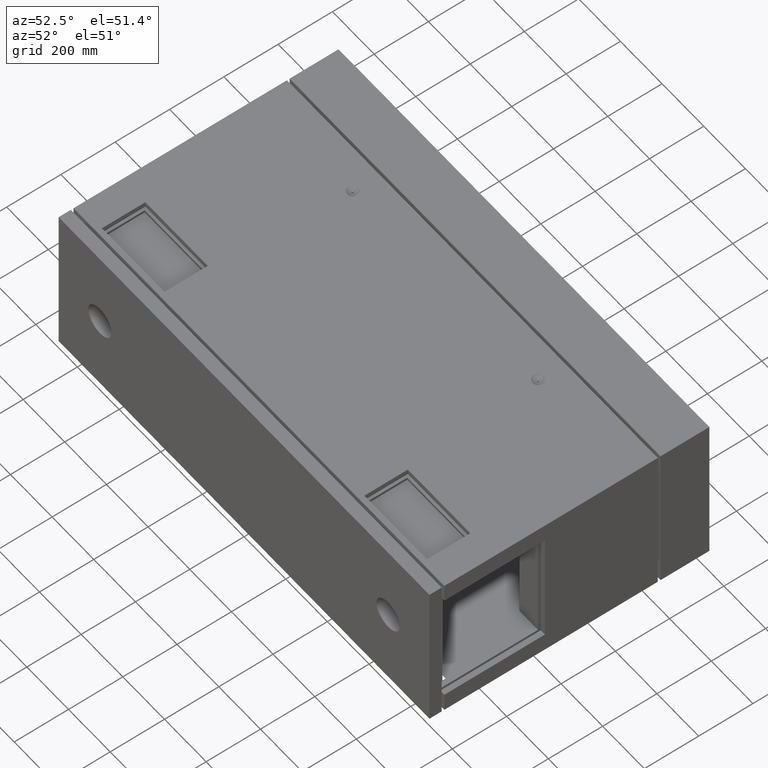
[diagram: clean part render]
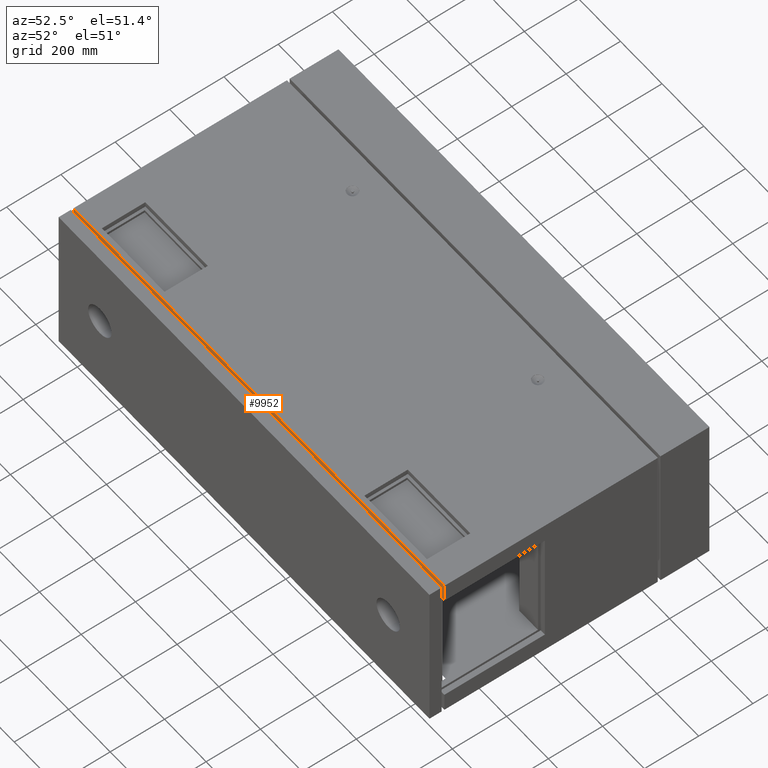
[diagram: same view with one face highlighted and labeled with its STEP entity id]
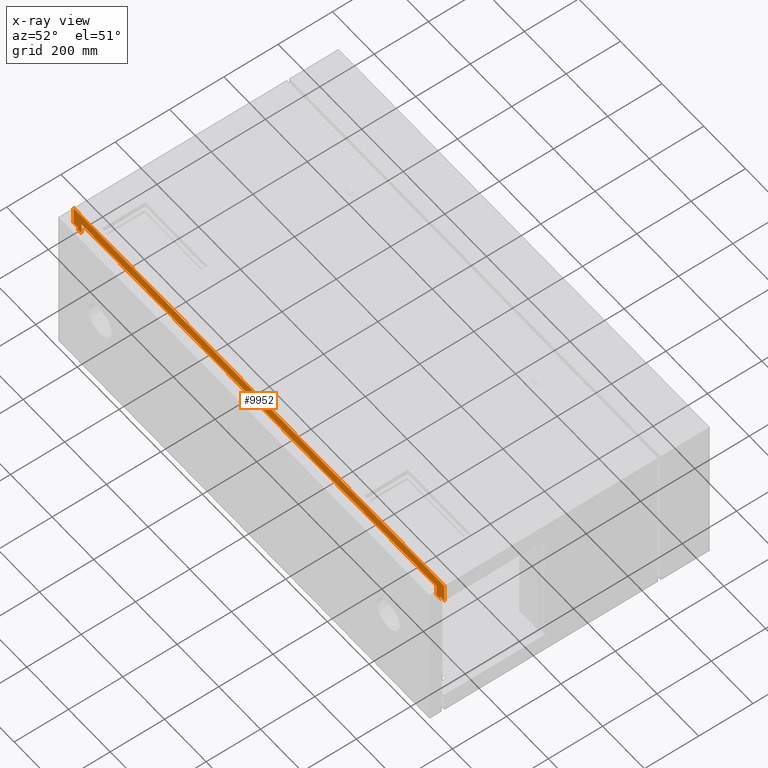
[diagram: x-ray of the same camera — body ghosted, the highlighted face saturated]
A machine part, auxiliary view. The second image highlights one B-rep face of the part: STEP entity #9952.
The next image is the same camera in x-ray: the body ghosted, the highlighted face saturated — about 0% of this face is hidden behind the body in this view.
In plain terms, the highlighted planar face has unit normal (0, -1, -0).
Its self-contained STEP definition (entity closure, byte-faithful):
#143 = CARTESIAN_POINT ( 'NONE',  ( -869.9999999999998863, 54.99999999999999289, 220.0000000000000284 ) ) ;
#291 = CARTESIAN_POINT ( 'NONE',  ( -890.0000000000001137, 55.00000000000004974, 290.0000000000000568 ) ) ;
#373 = CARTESIAN_POINT ( 'NONE',  ( -869.9999999999998863, 54.99999999999999289, 220.0000000000000284 ) ) ;
#408 = DIRECTION ( 'NONE',  ( -1.000000000000000000, -0.000000000000000000, 0.000000000000000000 ) ) ;
#654 = CARTESIAN_POINT ( 'NONE',  ( 870.0000000000000000, 55.00000000000004974, 210.0000000000000000 ) ) ;
#759 = DIRECTION ( 'NONE',  ( 2.392722035830078910E-17, 0.000000000000000000, -1.000000000000000000 ) ) ;
#764 = VECTOR ( 'NONE', #6861, 1000.000000000000000 ) ;
#821 = CARTESIAN_POINT ( 'NONE',  ( 890.0000000000000000, 54.99999999999999289, 220.0000000000000284 ) ) ;
#973 = VECTOR ( 'NONE', #5156, 1000.000000000000000 ) ;
#1043 = VECTOR ( 'NONE', #3524, 1000.000000000000000 ) ;
#1064 = VERTEX_POINT ( 'NONE', #6048 ) ;
#1196 = VECTOR ( 'NONE', #759, 1000.000000000000000 ) ;
#1309 = VECTOR ( 'NONE', #11837, 1000.000000000000000 ) ;
#1470 = CARTESIAN_POINT ( 'NONE',  ( -851.5000000000001137, 55.00000000000004974, 210.0000000000000000 ) ) ;
#1782 = EDGE_CURVE ( 'NONE', #8016, #2942, #8827, .T. ) ;
#1922 = AXIS2_PLACEMENT_3D ( 'NONE', #291, #10814, #5023 ) ;
#2573 = VECTOR ( 'NONE', #4315, 1000.000000000000000 ) ;
#2772 = VECTOR ( 'NONE', #7904, 1000.000000000000000 ) ;
#2828 = LINE ( 'NONE', #7353, #1043 ) ;
#2851 = CARTESIAN_POINT ( 'NONE',  ( -890.0000000000001137, 55.00000000000004974, 290.0000000000000568 ) ) ;
#2942 = VERTEX_POINT ( 'NONE', #821 ) ;
#2981 = DIRECTION ( 'NONE',  ( -0.000000000000000000, -0.000000000000000000, 1.000000000000000000 ) ) ;
#2987 = CARTESIAN_POINT ( 'NONE',  ( -851.5000000000001137, 55.00000000000004974, 251.5000000000000000 ) ) ;
#3018 = VERTEX_POINT ( 'NONE', #7828 ) ;
#3143 = DIRECTION ( 'NONE',  ( 1.000000000000000000, 0.000000000000000000, 0.000000000000000000 ) ) ;
#3295 = LINE ( 'NONE', #11344, #1196 ) ;
#3316 = EDGE_CURVE ( 'NONE', #8016, #6342, #9019, .T. ) ;
#3347 = CARTESIAN_POINT ( 'NONE',  ( 851.5000000000000000, 55.00000000000004974, 251.5000000000000000 ) ) ;
#3524 = DIRECTION ( 'NONE',  ( -2.759003540320965655E-17, 0.000000000000000000, 1.000000000000000000 ) ) ;
#3551 = CARTESIAN_POINT ( 'NONE',  ( 870.0000000000001137, 55.00000000000004974, 220.0000000000000284 ) ) ;
#3608 = PLANE ( 'NONE',  #1922 ) ;
#3705 = EDGE_CURVE ( 'NONE', #4556, #4679, #5670, .T. ) ;
#3733 = VECTOR ( 'NONE', #3811, 1000.000000000000000 ) ;
#3811 = DIRECTION ( 'NONE',  ( 1.000000000000000000, 0.000000000000000000, 0.000000000000000000 ) ) ;
#4023 = LINE ( 'NONE', #5209, #8896 ) ;
#4032 = CARTESIAN_POINT ( 'NONE',  ( -869.9999999999998863, 54.99999999999999289, 220.0000000000000284 ) ) ;
#4033 = VECTOR ( 'NONE', #408, 1000.000000000000000 ) ;
#4315 = DIRECTION ( 'NONE',  ( -1.000000000000000000, 0.000000000000000000, -0.000000000000000000 ) ) ;
#4556 = VERTEX_POINT ( 'NONE', #4032 ) ;
#4679 = VERTEX_POINT ( 'NONE', #11923 ) ;
#4750 = VERTEX_POINT ( 'NONE', #6108 ) ;
#5023 = DIRECTION ( 'NONE',  ( -1.000000000000000000, 0.000000000000000000, -0.000000000000000000 ) ) ;
#5156 = DIRECTION ( 'NONE',  ( 0.000000000000000000, 1.224646799147353454E-16, -1.000000000000000000 ) ) ;
#5209 = CARTESIAN_POINT ( 'NONE',  ( 226.8273325624265908, 55.00000000000004974, 210.0000000000000000 ) ) ;
#5670 = LINE ( 'NONE', #143, #2772 ) ;
#5765 = EDGE_CURVE ( 'NONE', #4679, #10867, #8041, .T. ) ;
#5767 = LINE ( 'NONE', #3347, #2573 ) ;
#5847 = ORIENTED_EDGE ( 'NONE', *, *, #10984, .T. ) ;
#6034 = CARTESIAN_POINT ( 'NONE',  ( 870.0000000000000000, 54.99999999999999289, 220.0000000000000284 ) ) ;
#6048 = CARTESIAN_POINT ( 'NONE',  ( 851.5000000000001137, 55.00000000000004974, 251.5000000000000000 ) ) ;
#6108 = CARTESIAN_POINT ( 'NONE',  ( -869.9999999999998863, 54.99999999999999289, 210.0000000000000000 ) ) ;
#6342 = VERTEX_POINT ( 'NONE', #654 ) ;
#6404 = ORIENTED_EDGE ( 'NONE', *, *, #6630, .F. ) ;
#6630 = EDGE_CURVE ( 'NONE', #8013, #4750, #8757, .T. ) ;
#6733 = EDGE_LOOP ( 'NONE', ( #8081, #6404, #8766, #11645, #11821, #5847, #11586, #10678, #10092, #7202, #8155, #12015 ) ) ;
#6861 = DIRECTION ( 'NONE',  ( 0.000000000000000000, 0.000000000000000000, -1.000000000000000000 ) ) ;
#7106 = CARTESIAN_POINT ( 'NONE',  ( 1333.172667437573409, 55.00000000000004974, 210.0000000000000000 ) ) ;
#7151 = EDGE_CURVE ( 'NONE', #10867, #3018, #11438, .T. ) ;
#7202 = ORIENTED_EDGE ( 'NONE', *, *, #7151, .F. ) ;
#7276 = CARTESIAN_POINT ( 'NONE',  ( 851.4999999999998863, 55.00000000000004974, 209.9999999999999716 ) ) ;
#7353 = CARTESIAN_POINT ( 'NONE',  ( 851.5000000000000000, 55.00000000000004974, -251.4999999999999432 ) ) ;
#7467 = VECTOR ( 'NONE', #7760, 1000.000000000000000 ) ;
#7683 = CARTESIAN_POINT ( 'NONE',  ( 890.0000000000000000, 55.00000000000004974, 290.0000000000000568 ) ) ;
#7760 = DIRECTION ( 'NONE',  ( 1.000000000000000000, 0.000000000000000000, 0.000000000000000000 ) ) ;
#7802 = VERTEX_POINT ( 'NONE', #11630 ) ;
#7828 = CARTESIAN_POINT ( 'NONE',  ( 890.0000000000000000, 55.00000000000004974, 290.0000000000000568 ) ) ;
#7904 = DIRECTION ( 'NONE',  ( -1.000000000000000000, -0.000000000000000000, 0.000000000000000000 ) ) ;
#8013 = VERTEX_POINT ( 'NONE', #1470 ) ;
#8016 = VERTEX_POINT ( 'NONE', #3551 ) ;
#8041 = LINE ( 'NONE', #2851, #10430 ) ;
#8081 = ORIENTED_EDGE ( 'NONE', *, *, #10129, .T. ) ;
#8155 = ORIENTED_EDGE ( 'NONE', *, *, #5765, .F. ) ;
#8429 = EDGE_CURVE ( 'NONE', #7802, #8013, #11628, .T. ) ;
#8699 = FACE_OUTER_BOUND ( 'NONE', #6733, .T. ) ;
#8757 = LINE ( 'NONE', #7106, #4033 ) ;
#8766 = ORIENTED_EDGE ( 'NONE', *, *, #8429, .F. ) ;
#8827 = LINE ( 'NONE', #10734, #7467 ) ;
#8896 = VECTOR ( 'NONE', #3143, 1000.000000000000000 ) ;
#8909 = EDGE_CURVE ( 'NONE', #3018, #2942, #3295, .T. ) ;
#9019 = LINE ( 'NONE', #6034, #1309 ) ;
#9952 = ADVANCED_FACE ( 'NONE', ( #8699 ), #3608, .T. ) ;
#10092 = ORIENTED_EDGE ( 'NONE', *, *, #8909, .F. ) ;
#10129 = EDGE_CURVE ( 'NONE', #4556, #4750, #11233, .T. ) ;
#10430 = VECTOR ( 'NONE', #2981, 1000.000000000000000 ) ;
#10678 = ORIENTED_EDGE ( 'NONE', *, *, #1782, .T. ) ;
#10727 = EDGE_CURVE ( 'NONE', #12248, #1064, #2828, .T. ) ;
#10734 = CARTESIAN_POINT ( 'NONE',  ( 870.0000000000000000, 54.99999999999999289, 220.0000000000000284 ) ) ;
#10741 = CARTESIAN_POINT ( 'NONE',  ( -890.0000000000001137, 55.00000000000004974, 290.0000000000000568 ) ) ;
#10814 = DIRECTION ( 'NONE',  ( 0.000000000000000000, -1.000000000000000000, -0.000000000000000000 ) ) ;
#10867 = VERTEX_POINT ( 'NONE', #10741 ) ;
#10984 = EDGE_CURVE ( 'NONE', #12248, #6342, #4023, .T. ) ;
#11233 = LINE ( 'NONE', #373, #973 ) ;
#11344 = CARTESIAN_POINT ( 'NONE',  ( 890.0000000000000000, 55.00000000000004974, 290.0000000000000568 ) ) ;
#11438 = LINE ( 'NONE', #7683, #3733 ) ;
#11586 = ORIENTED_EDGE ( 'NONE', *, *, #3316, .F. ) ;
#11628 = LINE ( 'NONE', #2987, #764 ) ;
#11630 = CARTESIAN_POINT ( 'NONE',  ( -851.5000000000001137, 55.00000000000004974, 251.5000000000000000 ) ) ;
#11645 = ORIENTED_EDGE ( 'NONE', *, *, #12429, .F. ) ;
#11821 = ORIENTED_EDGE ( 'NONE', *, *, #10727, .F. ) ;
#11837 = DIRECTION ( 'NONE',  ( 0.000000000000000000, 1.224646799147353454E-16, -1.000000000000000000 ) ) ;
#11923 = CARTESIAN_POINT ( 'NONE',  ( -889.9999999999998863, 54.99999999999999289, 220.0000000000000284 ) ) ;
#12015 = ORIENTED_EDGE ( 'NONE', *, *, #3705, .F. ) ;
#12248 = VERTEX_POINT ( 'NONE', #7276 ) ;
#12429 = EDGE_CURVE ( 'NONE', #1064, #7802, #5767, .T. ) ;